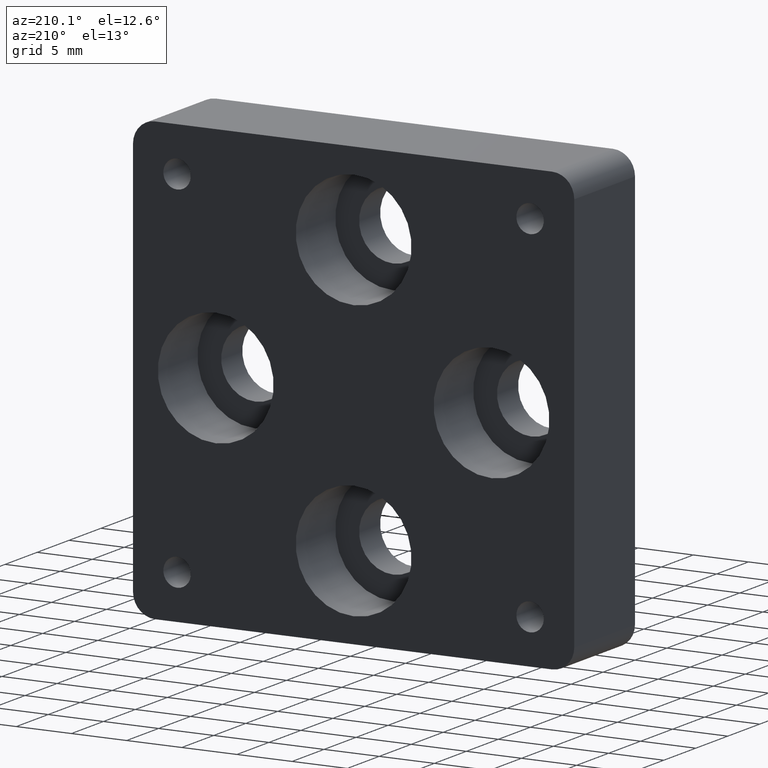
[diagram: clean part render]
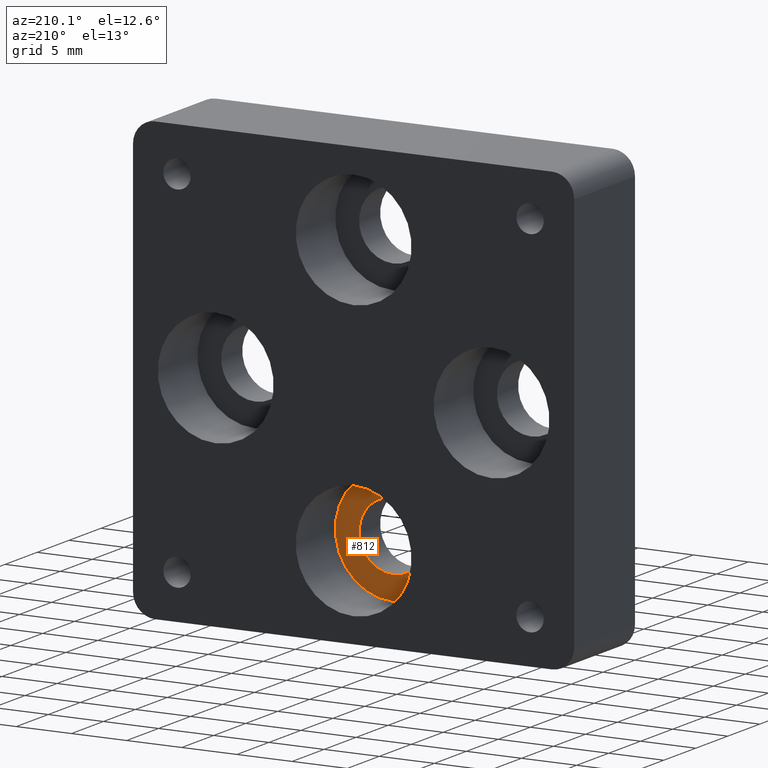
[diagram: same view with one face highlighted and labeled with its STEP entity id]
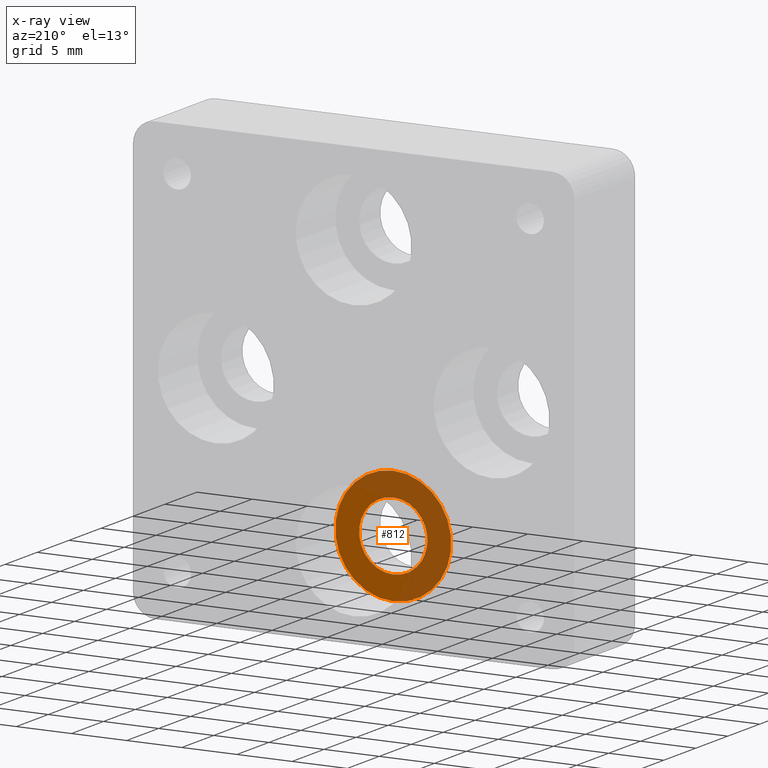
[diagram: x-ray of the same camera — body ghosted, the highlighted face saturated]
A machine part, auxiliary view. The second image highlights one B-rep face of the part: STEP entity #812.
The next image is the same camera in x-ray: the body ghosted, the highlighted face saturated — about 56% of this face is hidden behind the body in this view.
In plain terms, the highlighted planar face has unit normal (-0, 1, 0).
Its self-contained STEP definition (entity closure, byte-faithful):
#49 = EDGE_CURVE ( 'NONE', #688, #439, #729, .T. ) ;
#53 = ORIENTED_EDGE ( 'NONE', *, *, #793, .F. ) ;
#104 = VERTEX_POINT ( 'NONE', #320 ) ;
#126 = DIRECTION ( 'NONE',  ( 0.000000000000000000, 1.000000000000000000, 0.000000000000000000 ) ) ;
#134 = CARTESIAN_POINT ( 'NONE',  ( 0.000000000000000000, 3.299999999999999822, -12.50000000000000000 ) ) ;
#208 = CARTESIAN_POINT ( 'NONE',  ( 0.000000000000000000, 3.299999999999999822, -12.50000000000000000 ) ) ;
#226 = DIRECTION ( 'NONE',  ( 1.000000000000000000, 0.000000000000000000, 0.000000000000000000 ) ) ;
#272 = DIRECTION ( 'NONE',  ( 0.000000000000000000, 0.000000000000000000, 1.000000000000000000 ) ) ;
#273 = CARTESIAN_POINT ( 'NONE',  ( 3.796405077356794425E-16, 3.299999999999999822, -9.400000000000000355 ) ) ;
#320 = CARTESIAN_POINT ( 'NONE',  ( 6.429395695523603167E-16, 3.299999999999999822, -17.75000000000000355 ) ) ;
#326 = DIRECTION ( 'NONE',  ( -0.000000000000000000, 1.000000000000000000, 0.000000000000000000 ) ) ;
#330 = PLANE ( 'NONE',  #1168 ) ;
#360 = DIRECTION ( 'NONE',  ( 0.000000000000000000, 1.000000000000000000, 0.000000000000000000 ) ) ;
#434 = CARTESIAN_POINT ( 'NONE',  ( 0.000000000000000000, 3.299999999999999822, -7.250000000000000000 ) ) ;
#439 = VERTEX_POINT ( 'NONE', #273 ) ;
#460 = AXIS2_PLACEMENT_3D ( 'NONE', #1160, #971, #867 ) ;
#553 = CIRCLE ( 'NONE', #460, 5.250000000000000000 ) ;
#667 = EDGE_LOOP ( 'NONE', ( #1084, #1285 ) ) ;
#670 = AXIS2_PLACEMENT_3D ( 'NONE', #208, #1206, #827 ) ;
#688 = VERTEX_POINT ( 'NONE', #899 ) ;
#708 = CIRCLE ( 'NONE', #1024, 5.250000000000000000 ) ;
#729 = CIRCLE ( 'NONE', #1148, 3.100000000000000533 ) ;
#793 = EDGE_CURVE ( 'NONE', #439, #688, #1121, .T. ) ;
#812 = ADVANCED_FACE ( 'NONE', ( #1220, #1008 ), #330, .T. ) ;
#827 = DIRECTION ( 'NONE',  ( 0.000000000000000000, 0.000000000000000000, 1.000000000000000000 ) ) ;
#867 = DIRECTION ( 'NONE',  ( 0.000000000000000000, 0.000000000000000000, 1.000000000000000000 ) ) ;
#896 = VERTEX_POINT ( 'NONE', #434 ) ;
#899 = CARTESIAN_POINT ( 'NONE',  ( 0.000000000000000000, 3.299999999999999822, -15.60000000000000142 ) ) ;
#941 = EDGE_CURVE ( 'NONE', #896, #104, #708, .T. ) ;
#971 = DIRECTION ( 'NONE',  ( 0.000000000000000000, 1.000000000000000000, 0.000000000000000000 ) ) ;
#982 = EDGE_CURVE ( 'NONE', #104, #896, #553, .T. ) ;
#1008 = FACE_BOUND ( 'NONE', #1184, .T. ) ;
#1014 = DIRECTION ( 'NONE',  ( 0.000000000000000000, 0.000000000000000000, 1.000000000000000000 ) ) ;
#1024 = AXIS2_PLACEMENT_3D ( 'NONE', #1154, #360, #272 ) ;
#1084 = ORIENTED_EDGE ( 'NONE', *, *, #941, .T. ) ;
#1107 = ORIENTED_EDGE ( 'NONE', *, *, #49, .F. ) ;
#1121 = CIRCLE ( 'NONE', #670, 3.100000000000000533 ) ;
#1148 = AXIS2_PLACEMENT_3D ( 'NONE', #1219, #126, #1014 ) ;
#1154 = CARTESIAN_POINT ( 'NONE',  ( 0.000000000000000000, 3.299999999999999822, -12.50000000000000000 ) ) ;
#1160 = CARTESIAN_POINT ( 'NONE',  ( 0.000000000000000000, 3.299999999999999822, -12.50000000000000000 ) ) ;
#1168 = AXIS2_PLACEMENT_3D ( 'NONE', #134, #326, #226 ) ;
#1184 = EDGE_LOOP ( 'NONE', ( #1107, #53 ) ) ;
#1206 = DIRECTION ( 'NONE',  ( 0.000000000000000000, 1.000000000000000000, 0.000000000000000000 ) ) ;
#1219 = CARTESIAN_POINT ( 'NONE',  ( 0.000000000000000000, 3.299999999999999822, -12.50000000000000000 ) ) ;
#1220 = FACE_OUTER_BOUND ( 'NONE', #667, .T. ) ;
#1285 = ORIENTED_EDGE ( 'NONE', *, *, #982, .T. ) ;